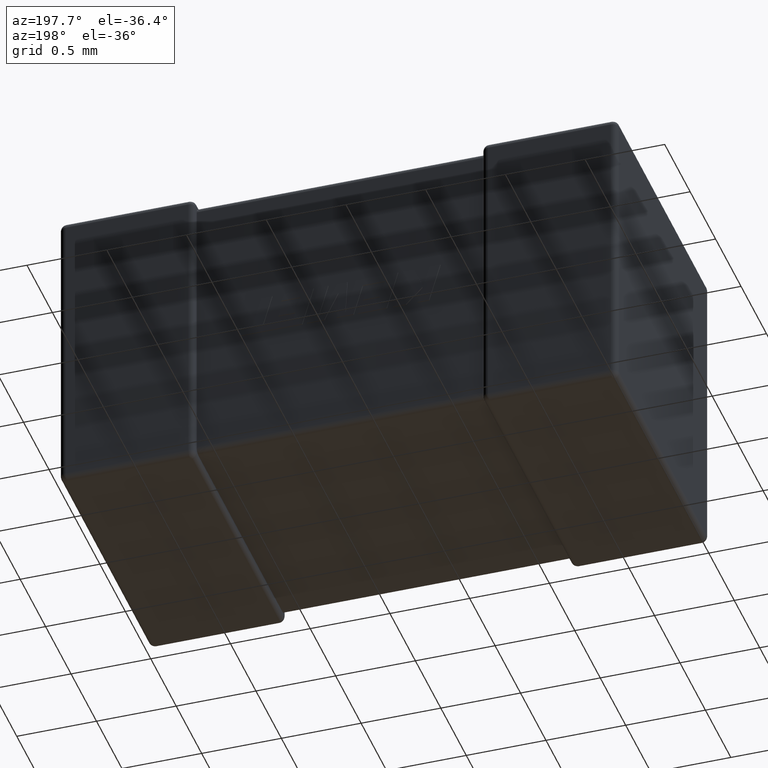
[diagram: clean part render]
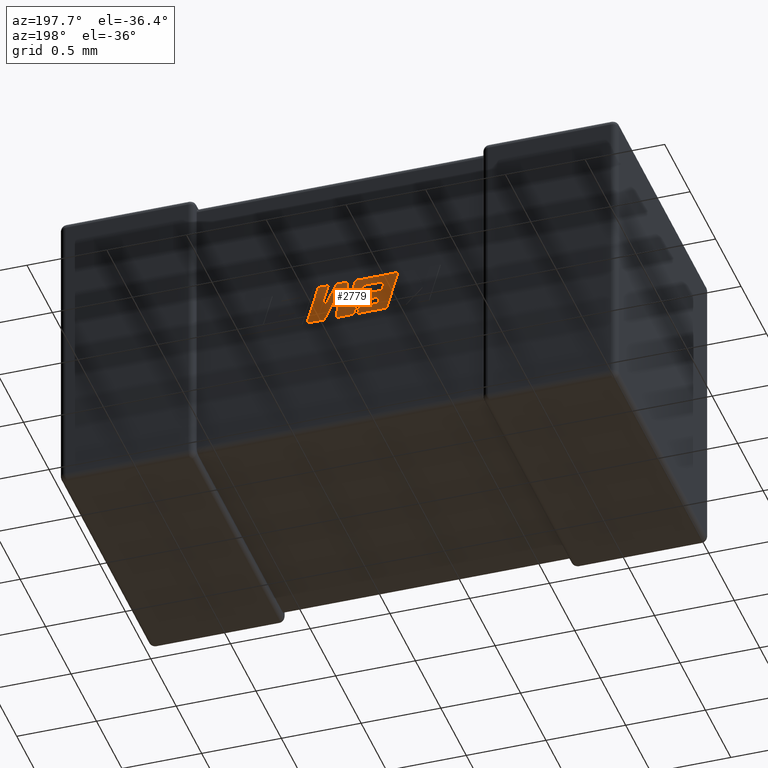
[diagram: same view with one face highlighted and labeled with its STEP entity id]
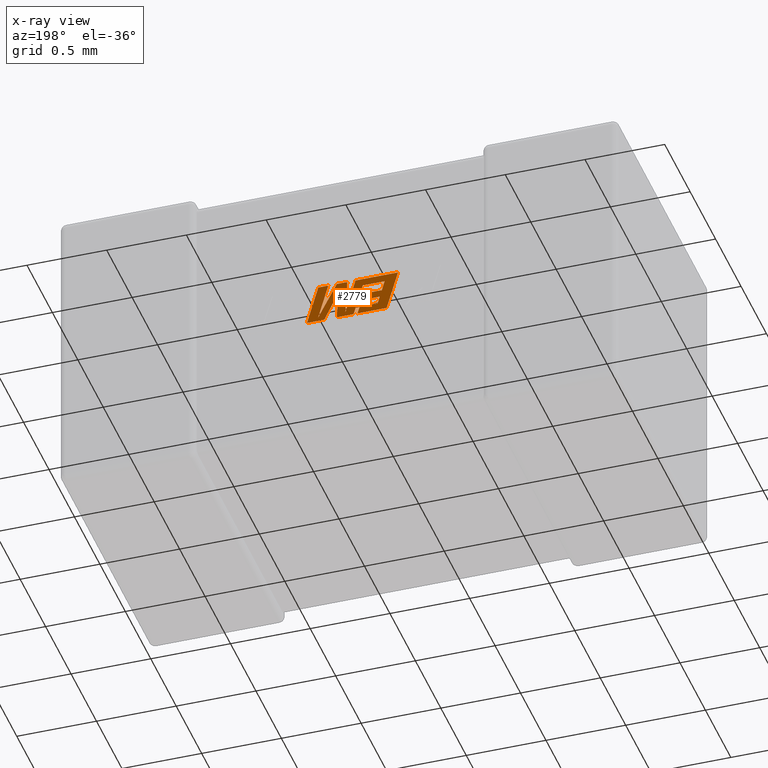
[diagram: x-ray of the same camera — body ghosted, the highlighted face saturated]
A machine part, auxiliary view. The second image highlights one B-rep face of the part: STEP entity #2779.
The next image is the same camera in x-ray: the body ghosted, the highlighted face saturated — about 0% of this face is hidden behind the body in this view.
In plain terms, the highlighted planar face has unit normal (0, -1, 0).
Its self-contained STEP definition (entity closure, byte-faithful):
#5 = DIRECTION ( 'NONE',  ( 1.000000000000000000, 0.0000000000000000000, 0.0000000000000000000 ) ) ;
#9 = VERTEX_POINT ( 'NONE', #4633 ) ;
#29 = CARTESIAN_POINT ( 'NONE',  ( 1.716100156339302600, 1.765479999999999900, -1.031996712515880900 ) ) ;
#32 = ORIENTED_EDGE ( 'NONE', *, *, #1345, .T. ) ;
#94 = EDGE_CURVE ( 'NONE', #2280, #714, #3286, .T. ) ;
#105 = ORIENTED_EDGE ( 'NONE', *, *, #989, .T. ) ;
#108 = DIRECTION ( 'NONE',  ( -1.000000000000000000, 0.0000000000000000000, 0.0000000000000000000 ) ) ;
#120 = VERTEX_POINT ( 'NONE', #4401 ) ;
#183 = LINE ( 'NONE', #2147, #532 ) ;
#196 = LINE ( 'NONE', #940, #1712 ) ;
#209 = AXIS2_PLACEMENT_3D ( 'NONE', #3253, #3587, #3571 ) ;
#250 = LINE ( 'NONE', #1556, #3967 ) ;
#257 = DIRECTION ( 'NONE',  ( -0.4443210308329503800, 0.0000000000000000000, 0.8958676361826809500 ) ) ;
#326 = DIRECTION ( 'NONE',  ( 0.2763139702539146300, 0.0000000000000000000, -0.9610674221107063900 ) ) ;
#356 = ORIENTED_EDGE ( 'NONE', *, *, #3202, .T. ) ;
#391 = VERTEX_POINT ( 'NONE', #927 ) ;
#398 = VERTEX_POINT ( 'NONE', #4498 ) ;
#401 = EDGE_CURVE ( 'NONE', #3208, #3588, #196, .T. ) ;
#497 = CARTESIAN_POINT ( 'NONE',  ( 1.886050624345266600, 1.765479999999999900, -0.8114900000000000400 ) ) ;
#532 = VECTOR ( 'NONE', #3955, 1000.000000000000100 ) ;
#536 = CARTESIAN_POINT ( 'NONE',  ( 1.770393487593018700, 1.765479999999999900, -1.059174177071127200 ) ) ;
#556 = CARTESIAN_POINT ( 'NONE',  ( 1.886737460260521800, 1.765479999999999900, -1.033058596989660600 ) ) ;
#557 = EDGE_CURVE ( 'NONE', #562, #3646, #3372, .T. ) ;
#562 = VERTEX_POINT ( 'NONE', #2472 ) ;
#635 = EDGE_CURVE ( 'NONE', #2586, #1463, #4574, .T. ) ;
#657 = DIRECTION ( 'NONE',  ( -0.2765379750249969400, 0.0000000000000000000, 0.9610029908221275900 ) ) ;
#665 = VERTEX_POINT ( 'NONE', #2597 ) ;
#705 = CARTESIAN_POINT ( 'NONE',  ( 1.607264529018561900, 1.765479999999999900, -0.8586120649335425800 ) ) ;
#714 = VERTEX_POINT ( 'NONE', #800 ) ;
#717 = CARTESIAN_POINT ( 'NONE',  ( 1.769770508863776100, 1.765479999999999900, -0.8114900000000000400 ) ) ;
#734 = CARTESIAN_POINT ( 'NONE',  ( 1.606874418269159700, 1.765479999999999900, -0.9659595479684123200 ) ) ;
#770 = ORIENTED_EDGE ( 'NONE', *, *, #4029, .T. ) ;
#800 = CARTESIAN_POINT ( 'NONE',  ( 1.848629056049057500, 1.765479999999999900, -1.059174177071127200 ) ) ;
#811 = DIRECTION ( 'NONE',  ( 1.000000000000000000, 0.0000000000000000000, 0.0000000000000000000 ) ) ;
#862 = VECTOR ( 'NONE', #3375, 1000.000000000000200 ) ;
#879 = EDGE_CURVE ( 'NONE', #3567, #926, #1055, .T. ) ;
#926 = VERTEX_POINT ( 'NONE', #556 ) ;
#927 = CARTESIAN_POINT ( 'NONE',  ( 1.469962113384544000, 1.765479999999999900, -0.8586120649335425800 ) ) ;
#940 = CARTESIAN_POINT ( 'NONE',  ( 1.770393487593018700, 1.765479999999999900, -1.059174177071127200 ) ) ;
#959 = LINE ( 'NONE', #2669, #3768 ) ;
#986 = CARTESIAN_POINT ( 'NONE',  ( 1.823110246293129700, 1.765479999999999900, -0.8114900000000000400 ) ) ;
#989 = EDGE_CURVE ( 'NONE', #398, #2586, #1992, .T. ) ;
#1017 = ORIENTED_EDGE ( 'NONE', *, *, #1378, .T. ) ;
#1026 = DIRECTION ( 'NONE',  ( 1.000000000000000000, 0.0000000000000000000, 0.0000000000000000000 ) ) ;
#1032 = PLANE ( 'NONE',  #209 ) ;
#1055 = LINE ( 'NONE', #2772, #3300 ) ;
#1083 = LINE ( 'NONE', #986, #2890 ) ;
#1087 = CARTESIAN_POINT ( 'NONE',  ( 1.593795917715412200, 1.765479999999999900, -0.9201712400594462800 ) ) ;
#1135 = CARTESIAN_POINT ( 'NONE',  ( 1.487502034949494500, 1.765479999999999900, -0.9201712400594462800 ) ) ;
#1246 = CARTESIAN_POINT ( 'NONE',  ( 1.716100156339302600, 1.765479999999999900, -1.031996712515880900 ) ) ;
#1255 = VECTOR ( 'NONE', #3956, 1000.000000000000100 ) ;
#1258 = EDGE_CURVE ( 'NONE', #2409, #562, #4487, .T. ) ;
#1316 = LINE ( 'NONE', #1246, #3467 ) ;
#1345 = EDGE_CURVE ( 'NONE', #1463, #4112, #1596, .T. ) ;
#1371 = ORIENTED_EDGE ( 'NONE', *, *, #557, .T. ) ;
#1378 = EDGE_CURVE ( 'NONE', #4112, #4670, #1316, .T. ) ;
#1383 = CARTESIAN_POINT ( 'NONE',  ( 1.886050624345266600, 1.765479999999999900, -0.8114900000000000400 ) ) ;
#1386 = ORIENTED_EDGE ( 'NONE', *, *, #3639, .T. ) ;
#1408 = DIRECTION ( 'NONE',  ( 1.000000000000000000, 0.0000000000000000000, 0.0000000000000000000 ) ) ;
#1409 = EDGE_CURVE ( 'NONE', #3659, #2280, #1937, .T. ) ;
#1421 = CARTESIAN_POINT ( 'NONE',  ( 1.760868262395991300, 1.765479999999999900, -0.8822254186202872500 ) ) ;
#1454 = DIRECTION ( 'NONE',  ( -1.000000000000000000, 0.0000000000000000000, 0.0000000000000000000 ) ) ;
#1463 = VERTEX_POINT ( 'NONE', #4536 ) ;
#1468 = ORIENTED_EDGE ( 'NONE', *, *, #94, .T. ) ;
#1470 = LINE ( 'NONE', #1135, #4296 ) ;
#1498 = CARTESIAN_POINT ( 'NONE',  ( 1.626818265537473000, 1.765479999999999900, -1.012028765741800100 ) ) ;
#1519 = DIRECTION ( 'NONE',  ( 0.2793947940878428500, 0.0000000000000000000, -0.9601763114327555000 ) ) ;
#1529 = VECTOR ( 'NONE', #1454, 1000.000000000000000 ) ;
#1547 = CARTESIAN_POINT ( 'NONE',  ( 1.593795917715412200, 1.765479999999999900, -0.9201712400594462800 ) ) ;
#1556 = CARTESIAN_POINT ( 'NONE',  ( 1.640208553447519700, 1.765479999999999900, -1.059174177071127200 ) ) ;
#1596 = LINE ( 'NONE', #1965, #1714 ) ;
#1650 = VECTOR ( 'NONE', #2915, 1000.000000000000000 ) ;
#1668 = LINE ( 'NONE', #3874, #3876 ) ;
#1680 = VECTOR ( 'NONE', #1408, 1000.000000000000000 ) ;
#1682 = CARTESIAN_POINT ( 'NONE',  ( 1.848629056049057500, 1.765479999999999900, -1.059174177071127200 ) ) ;
#1699 = VECTOR ( 'NONE', #108, 1000.000000000000000 ) ;
#1712 = VECTOR ( 'NONE', #1989, 1000.000000000000000 ) ;
#1714 = VECTOR ( 'NONE', #3027, 1000.000000000000200 ) ;
#1793 = CARTESIAN_POINT ( 'NONE',  ( 1.703740122302430400, 1.765479999999999900, -0.8114900000000000400 ) ) ;
#1799 = ORIENTED_EDGE ( 'NONE', *, *, #4293, .T. ) ;
#1851 = DIRECTION ( 'NONE',  ( 1.000000000000000000, 0.0000000000000000000, 0.0000000000000000000 ) ) ;
#1878 = CARTESIAN_POINT ( 'NONE',  ( 1.385954248408997300, 1.765479999999999900, -0.8114899999999998200 ) ) ;
#1889 = CARTESIAN_POINT ( 'NONE',  ( 1.664913559329999100, 1.765479999999999900, -1.059174177071127200 ) ) ;
#1937 = LINE ( 'NONE', #1383, #3804 ) ;
#1950 = DIRECTION ( 'NONE',  ( -1.000000000000000000, 0.0000000000000000000, 0.0000000000000000000 ) ) ;
#1965 = CARTESIAN_POINT ( 'NONE',  ( 1.652786235947213900, 1.765479999999999900, -0.8114900000000000400 ) ) ;
#1989 = DIRECTION ( 'NONE',  ( -1.000000000000000000, 0.0000000000000000000, 0.0000000000000000000 ) ) ;
#1992 = LINE ( 'NONE', #3908, #3754 ) ;
#2027 = EDGE_CURVE ( 'NONE', #4670, #3567, #4178, .T. ) ;
#2041 = CARTESIAN_POINT ( 'NONE',  ( 1.606874418269159700, 1.765479999999999900, -0.9659595479684123200 ) ) ;
#2058 = DIRECTION ( 'NONE',  ( -0.2760118818968593200, 0.0000000000000000000, 0.9611542233438680200 ) ) ;
#2120 = ORIENTED_EDGE ( 'NONE', *, *, #2577, .T. ) ;
#2147 = CARTESIAN_POINT ( 'NONE',  ( 1.469962113384544000, 1.765479999999999900, -0.8586120649335425800 ) ) ;
#2202 = CARTESIAN_POINT ( 'NONE',  ( 1.957261651543848800, 1.765479999999999900, -1.059174177071127200 ) ) ;
#2208 = ORIENTED_EDGE ( 'NONE', *, *, #1409, .T. ) ;
#2226 = ORIENTED_EDGE ( 'NONE', *, *, #401, .T. ) ;
#2280 = VERTEX_POINT ( 'NONE', #4400 ) ;
#2313 = LINE ( 'NONE', #734, #1529 ) ;
#2315 = DIRECTION ( 'NONE',  ( -0.05596501978068185700, 0.0000000000000000000, 0.9984327301130245800 ) ) ;
#2409 = VERTEX_POINT ( 'NONE', #4131 ) ;
#2459 = CARTESIAN_POINT ( 'NONE',  ( 1.513970823413273600, 1.765479999999999900, -1.012028765741800100 ) ) ;
#2472 = CARTESIAN_POINT ( 'NONE',  ( 1.513970823413273600, 1.765479999999999900, -1.012028765741800100 ) ) ;
#2566 = ORIENTED_EDGE ( 'NONE', *, *, #635, .T. ) ;
#2567 = VECTOR ( 'NONE', #1851, 1000.000000000000000 ) ;
#2577 = EDGE_CURVE ( 'NONE', #3474, #4219, #3125, .T. ) ;
#2586 = VERTEX_POINT ( 'NONE', #4414 ) ;
#2597 = CARTESIAN_POINT ( 'NONE',  ( 1.640208553447519700, 1.765479999999999900, -1.059174177071127200 ) ) ;
#2646 = VERTEX_POINT ( 'NONE', #4545 ) ;
#2669 = CARTESIAN_POINT ( 'NONE',  ( 1.626818265537473000, 1.765479999999999900, -1.012028765741800100 ) ) ;
#2673 = ORIENTED_EDGE ( 'NONE', *, *, #2027, .T. ) ;
#2738 = VECTOR ( 'NONE', #4090, 1000.000000000000000 ) ;
#2753 = EDGE_CURVE ( 'NONE', #714, #9, #4366, .T. ) ;
#2768 = VERTEX_POINT ( 'NONE', #3600 ) ;
#2772 = CARTESIAN_POINT ( 'NONE',  ( 1.769770508863776100, 1.765479999999999900, -0.8114900000000000400 ) ) ;
#2779 = ADVANCED_FACE ( 'NONE', ( #4652 ), #1032, .F. ) ;
#2782 = EDGE_CURVE ( 'NONE', #4219, #2409, #2313, .T. ) ;
#2787 = LINE ( 'NONE', #1421, #1255 ) ;
#2789 = DIRECTION ( 'NONE',  ( 0.2732148821746424600, 0.0000000000000000000, -0.9619530280415443700 ) ) ;
#2863 = EDGE_CURVE ( 'NONE', #9, #3208, #2787, .T. ) ;
#2890 = VECTOR ( 'NONE', #5, 1000.000000000000000 ) ;
#2915 = DIRECTION ( 'NONE',  ( -1.000000000000000000, 0.0000000000000000000, 0.0000000000000000000 ) ) ;
#2934 = EDGE_LOOP ( 'NONE', ( #1468, #3755, #4621, #2226, #356, #3947, #4063, #1386, #2120, #4552, #4274, #1371, #770, #3839, #105, #2566, #32, #1017, #2673, #3842, #1799, #4273, #2208 ) ) ;
#2984 = EDGE_CURVE ( 'NONE', #120, #3659, #1083, .T. ) ;
#3027 = DIRECTION ( 'NONE',  ( 0.2759782365590801000, 0.0000000000000000000, -0.9611638845408936300 ) ) ;
#3110 = DIRECTION ( 'NONE',  ( 0.4668459304955247000, 0.0000000000000000000, -0.8843386665637592600 ) ) ;
#3125 = LINE ( 'NONE', #1547, #2738 ) ;
#3202 = EDGE_CURVE ( 'NONE', #3588, #2768, #4537, .T. ) ;
#3208 = VERTEX_POINT ( 'NONE', #536 ) ;
#3247 = EDGE_CURVE ( 'NONE', #665, #398, #250, .T. ) ;
#3253 = CARTESIAN_POINT ( 'NONE',  ( -0.0002322642521030218700, 1.765479999999999700, 0.02144485441983351400 ) ) ;
#3286 = LINE ( 'NONE', #2202, #1650 ) ;
#3300 = VECTOR ( 'NONE', #3110, 1000.000000000000100 ) ;
#3358 = CARTESIAN_POINT ( 'NONE',  ( 1.664913559329999100, 1.765479999999999900, -1.059174177071127200 ) ) ;
#3372 = LINE ( 'NONE', #2459, #1680 ) ;
#3375 = DIRECTION ( 'NONE',  ( -0.2762517575166416100, 0.0000000000000000000, 0.9610853065513833600 ) ) ;
#3467 = VECTOR ( 'NONE', #2315, 1000.000000000000100 ) ;
#3474 = VERTEX_POINT ( 'NONE', #1087 ) ;
#3495 = EDGE_CURVE ( 'NONE', #391, #2646, #183, .T. ) ;
#3519 = VECTOR ( 'NONE', #1519, 1000.000000000000100 ) ;
#3567 = VERTEX_POINT ( 'NONE', #717 ) ;
#3571 = DIRECTION ( 'NONE',  ( 0.0000000000000000000, 0.0000000000000000000, -1.000000000000000000 ) ) ;
#3581 = EDGE_CURVE ( 'NONE', #2768, #391, #4591, .T. ) ;
#3587 = DIRECTION ( 'NONE',  ( 0.0000000000000000000, -1.000000000000000000, 0.0000000000000000000 ) ) ;
#3588 = VERTEX_POINT ( 'NONE', #1889 ) ;
#3600 = CARTESIAN_POINT ( 'NONE',  ( 1.607264529018561900, 1.765479999999999900, -0.8586120649335425800 ) ) ;
#3639 = EDGE_CURVE ( 'NONE', #2646, #3474, #1470, .T. ) ;
#3646 = VERTEX_POINT ( 'NONE', #1498 ) ;
#3659 = VERTEX_POINT ( 'NONE', #497 ) ;
#3689 = CARTESIAN_POINT ( 'NONE',  ( 1.500565473312127000, 1.765479999999999900, -0.9659595479684123200 ) ) ;
#3754 = VECTOR ( 'NONE', #657, 1000.000000000000100 ) ;
#3755 = ORIENTED_EDGE ( 'NONE', *, *, #2753, .T. ) ;
#3768 = VECTOR ( 'NONE', #2789, 1000.000000000000000 ) ;
#3775 = VECTOR ( 'NONE', #1026, 1000.000000000000000 ) ;
#3804 = VECTOR ( 'NONE', #326, 1000.000000000000100 ) ;
#3839 = ORIENTED_EDGE ( 'NONE', *, *, #3247, .T. ) ;
#3842 = ORIENTED_EDGE ( 'NONE', *, *, #879, .T. ) ;
#3874 = CARTESIAN_POINT ( 'NONE',  ( 1.886737460260521800, 1.765479999999999900, -1.033058596989660600 ) ) ;
#3876 = VECTOR ( 'NONE', #2058, 1000.000000000000000 ) ;
#3908 = CARTESIAN_POINT ( 'NONE',  ( 1.457227783899648100, 1.765479999999999900, -1.059174177071127200 ) ) ;
#3947 = ORIENTED_EDGE ( 'NONE', *, *, #3581, .T. ) ;
#3955 = DIRECTION ( 'NONE',  ( 0.2740217765953990000, 0.0000000000000000000, -0.9617234872620618000 ) ) ;
#3956 = DIRECTION ( 'NONE',  ( 0.05375259206908433700, 0.0000000000000000000, -0.9985542843760946100 ) ) ;
#3967 = VECTOR ( 'NONE', #1950, 1000.000000000000000 ) ;
#4029 = EDGE_CURVE ( 'NONE', #3646, #665, #959, .T. ) ;
#4063 = ORIENTED_EDGE ( 'NONE', *, *, #3495, .T. ) ;
#4090 = DIRECTION ( 'NONE',  ( 0.2746459304917039400, 0.0000000000000000000, -0.9615454294334439000 ) ) ;
#4095 = VECTOR ( 'NONE', #257, 999.9999999999998900 ) ;
#4112 = VERTEX_POINT ( 'NONE', #29 ) ;
#4131 = CARTESIAN_POINT ( 'NONE',  ( 1.500565473312127000, 1.765479999999999900, -0.9659595479684123200 ) ) ;
#4178 = LINE ( 'NONE', #4259, #3775 ) ;
#4219 = VERTEX_POINT ( 'NONE', #2041 ) ;
#4259 = CARTESIAN_POINT ( 'NONE',  ( 1.703740122302430400, 1.765479999999999900, -0.8114900000000000400 ) ) ;
#4273 = ORIENTED_EDGE ( 'NONE', *, *, #2984, .T. ) ;
#4274 = ORIENTED_EDGE ( 'NONE', *, *, #1258, .T. ) ;
#4293 = EDGE_CURVE ( 'NONE', #926, #120, #1668, .T. ) ;
#4296 = VECTOR ( 'NONE', #811, 1000.000000000000000 ) ;
#4366 = LINE ( 'NONE', #1682, #4095 ) ;
#4400 = CARTESIAN_POINT ( 'NONE',  ( 1.957261651543848800, 1.765479999999999900, -1.059174177071127200 ) ) ;
#4401 = CARTESIAN_POINT ( 'NONE',  ( 1.823110246293129700, 1.765479999999999900, -0.8114900000000000400 ) ) ;
#4414 = CARTESIAN_POINT ( 'NONE',  ( 1.385954248408997300, 1.765479999999999900, -0.8114899999999998200 ) ) ;
#4487 = LINE ( 'NONE', #3689, #3519 ) ;
#4498 = CARTESIAN_POINT ( 'NONE',  ( 1.457227783899648100, 1.765479999999999900, -1.059174177071127200 ) ) ;
#4536 = CARTESIAN_POINT ( 'NONE',  ( 1.652786235947213900, 1.765479999999999900, -0.8114900000000000400 ) ) ;
#4537 = LINE ( 'NONE', #3358, #862 ) ;
#4545 = CARTESIAN_POINT ( 'NONE',  ( 1.487502034949494500, 1.765479999999999900, -0.9201712400594462800 ) ) ;
#4552 = ORIENTED_EDGE ( 'NONE', *, *, #2782, .T. ) ;
#4574 = LINE ( 'NONE', #1878, #2567 ) ;
#4591 = LINE ( 'NONE', #705, #1699 ) ;
#4621 = ORIENTED_EDGE ( 'NONE', *, *, #2863, .T. ) ;
#4633 = CARTESIAN_POINT ( 'NONE',  ( 1.760868262395991300, 1.765479999999999900, -0.8822254186202872500 ) ) ;
#4652 = FACE_OUTER_BOUND ( 'NONE', #2934, .T. ) ;
#4670 = VERTEX_POINT ( 'NONE', #1793 ) ;